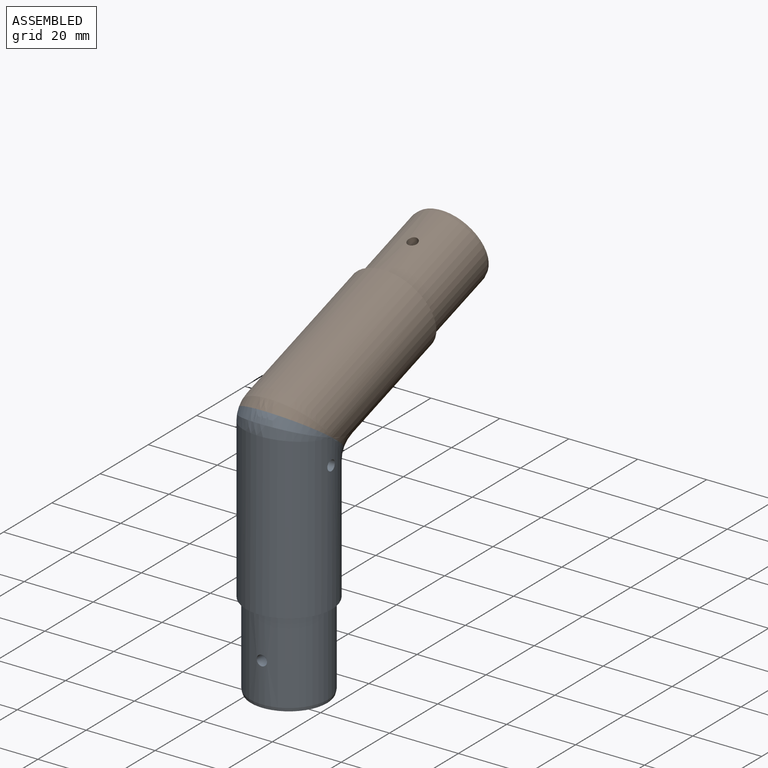
[diagram: assembled view]
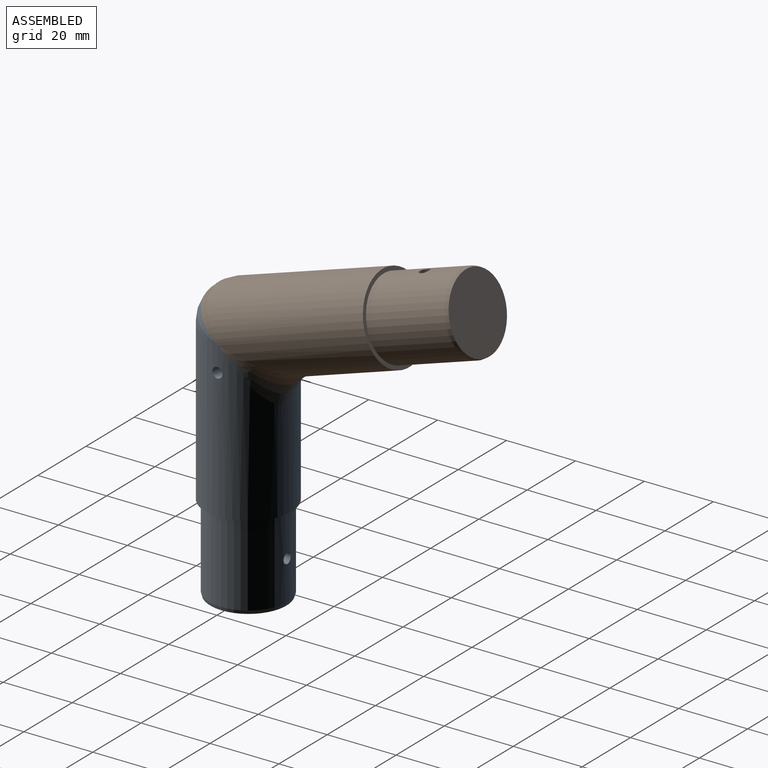
[diagram: assembled view, second angle]
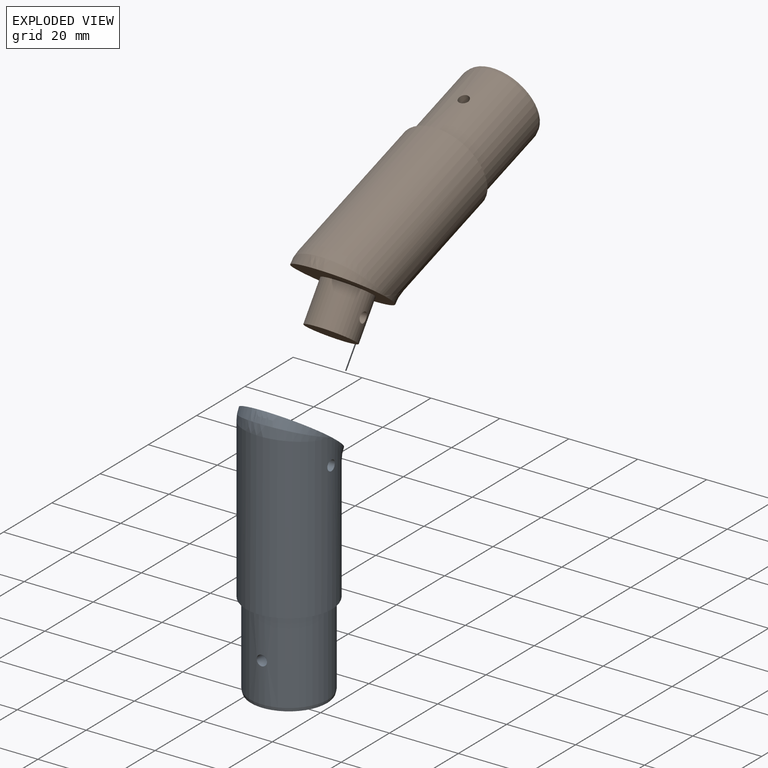
[diagram: exploded view]
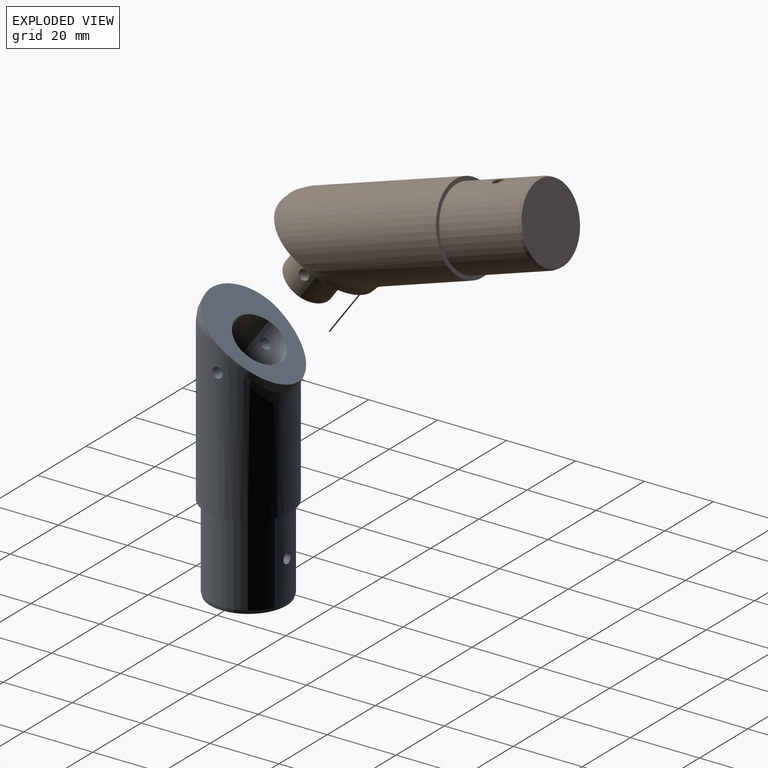
[diagram: exploded view, second angle]
ASSEMBLY  parts=2 mates=2
PART A: 13 faces, bbox 25x31.9x81.3 mm
  f0: bspline ~25x12.5mm, area 158.8mm2, adj f2,f6
  f1: bspline ~25x19.41mm, area 172.8mm2, adj f2,f6
  f2: cylinder r=12.5mm len=46.82mm, axis (0,0,-1), area 3156.9mm2, adj f0,f1,f5,f9,f10
  f3: cylinder r=11.35mm len=24mm, axis (0,0,-1), area 1697.3mm2, adj f5,f11,f12
  f4: plane 22.16x22.16mm, normal (0,0,-1), area 385.8mm2, adj f12
  f5: plane 25x25mm, normal (0,0,-1), area 86.2mm2, adj f2,f3
  f6: plane 25.01x25mm, normal (0,0.59,0.81), area 428.1mm2, adj f0,f1,f8
  f7: plane 15x12.14mm, normal (0,0.59,0.81), area 176.7mm2, adj f8
  f8: cylinder r=7.5mm len=19.48mm, axis (0,0.59,0.81), area 574.8mm2, adj f6,f7,f9,f10
  f9: cylinder r=1.5mm len=5.05mm, axis (1,0,0), area 47.6mm2, adj f2,f8
  f10: cylinder r=1.5mm len=5.05mm, axis (1,0,0), area 47.6mm2, adj f2,f8
  f11: cylinder r=1.5mm len=22.7mm, axis (0,-1,0), area 213.9mm2, adj f3
  f12: cone r=11.35mm half-angle=15deg, axis (0,0,1), area 73mm2, adj f3,f4
PART B: 12 faces, bbox 25x31.9x81.5 mm
  f0: bspline ~25x12.5mm, area 158.8mm2, adj f2,f6
  f1: bspline ~25x19.41mm, area 172.8mm2, adj f2,f6
  f2: cylinder r=12.5mm len=46.82mm, axis (0,0,-1), area 3171mm2, adj f0,f1,f5
  f3: cylinder r=11.35mm len=24mm, axis (0,0,-1), area 1697.3mm2, adj f5,f10,f11
  f4: plane 22.16x22.16mm, normal (0,0,-1), area 385.8mm2, adj f11
  f5: plane 25x25mm, normal (0,0,-1), area 86.2mm2, adj f2,f3
  f6: plane 25.01x25mm, normal (0,0.59,0.81), area 450.9mm2, adj f0,f1,f8
  f7: plane 14x11.33mm, normal (0,0.59,0.81), area 153.9mm2, adj f8
  f8: cylinder r=7mm len=18.38mm, axis (0,-0.59,-0.81), area 513.5mm2, adj f6,f7,f9
  f9: cylinder r=1.5mm len=13.89mm, axis (1,0,0), area 130.9mm2, adj f8
  f10: cylinder r=1.5mm len=22.7mm, axis (0,-1,0), area 213.9mm2, adj f3
  f11: cone r=11.35mm half-angle=15deg, axis (0,0,1), area 73mm2, adj f3,f4
PLACE A t=(-70.42,1.83,-10.88)mm
PLACE B rot(axis=(0,-0.81,0.59),180deg) t=(-70.42,68.4,80.75)mm
MATE slider B.f8 <-> A.f8  axis (0,0.59,0.81) through (-70.42,1.54,51.91)mm
MATE planar A.f6 <-> B.f6  axis (0,0.59,0.81) through (-70.42,2.73,58.46)mm
